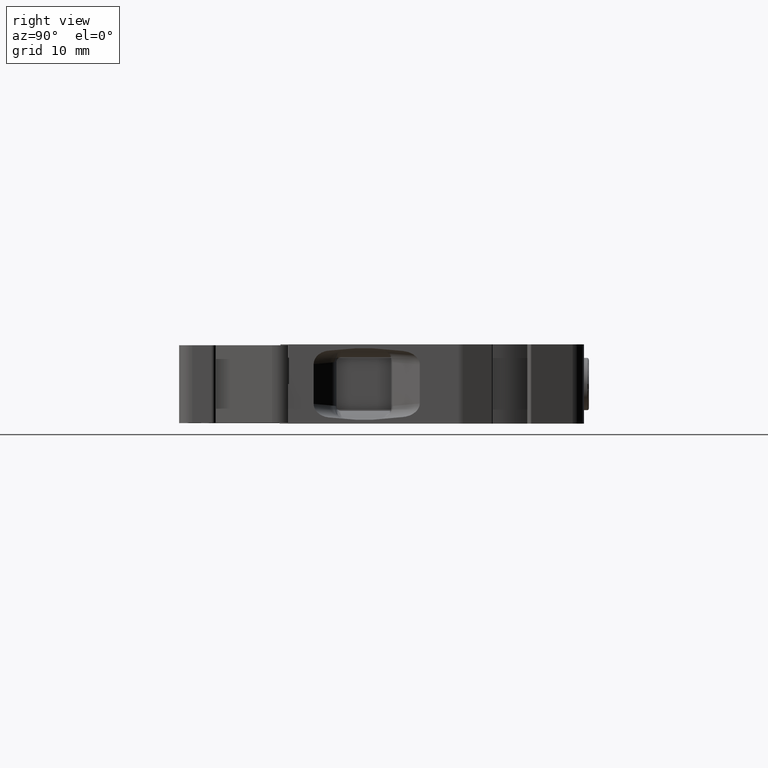
[diagram: clean part render]
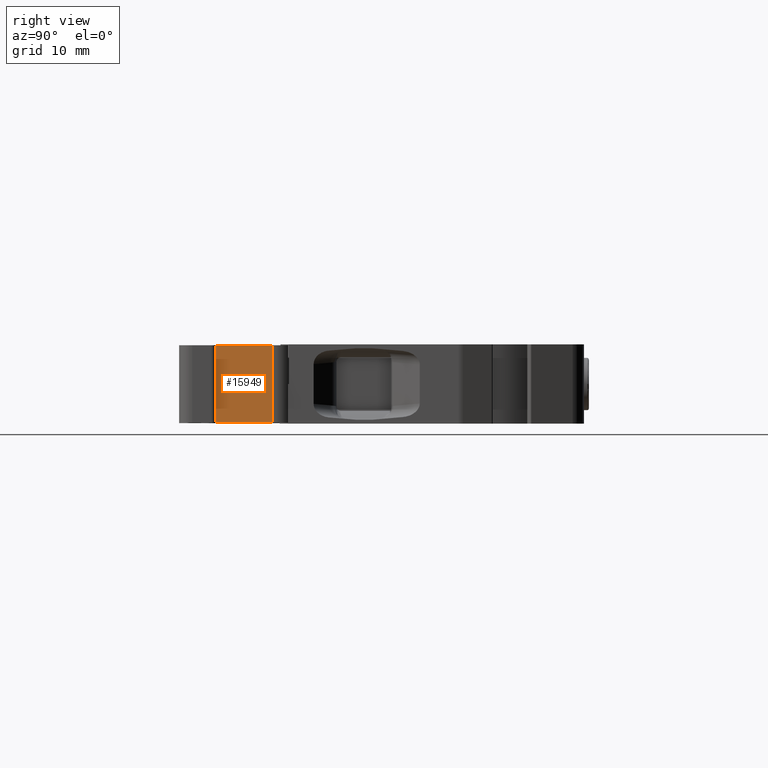
[diagram: same view with one face highlighted and labeled with its STEP entity id]
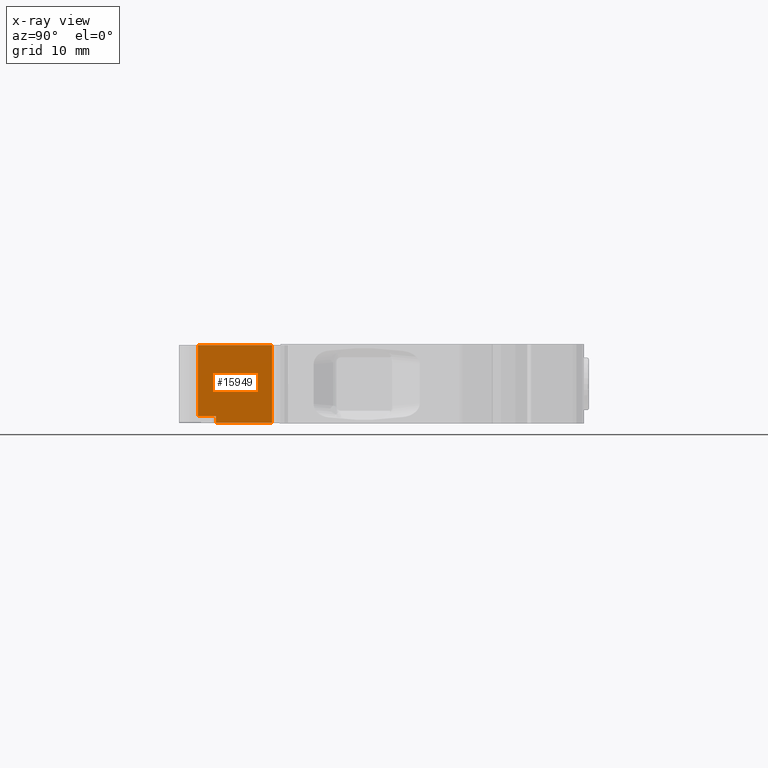
[diagram: x-ray of the same camera — body ghosted, the highlighted face saturated]
A machine part, right view. The second image highlights one B-rep face of the part: STEP entity #15949.
The next image is the same camera in x-ray: the body ghosted, the highlighted face saturated — about 0% of this face is hidden behind the body in this view.
In plain terms, the highlighted planar face has unit normal (0.9659, -0.2588, 0).
Its self-contained STEP definition (entity closure, byte-faithful):
#31 = CARTESIAN_POINT ( 'NONE',  ( 503.4182846379087000, 101.2396801636683700, 26.95000000000000300 ) ) ;
#66 = CARTESIAN_POINT ( 'NONE',  ( 505.1508689319251700, 107.7062752780199700, 26.95000000000000300 ) ) ;
#569 = LINE ( 'NONE', #570, #1236 ) ;
#570 = CARTESIAN_POINT ( 'NONE',  ( 488.2716139447940100, 44.70714258898591700, 27.69999999999998900 ) ) ;
#616 = DIRECTION ( 'NONE',  ( 0.2588002801198680000, 0.9659308541556573800, 0.0000000000000000000 ) ) ;
#972 = CARTESIAN_POINT ( 'NONE',  ( 505.1508689319251700, 107.7062752780199700, 35.85000000000000100 ) ) ;
#1236 = VECTOR ( 'NONE', #616, 1000.000000000000100 ) ;
#1370 = VECTOR ( 'NONE', #9002, 1000.000000000000100 ) ;
#1768 = AXIS2_PLACEMENT_3D ( 'NONE', #11171, #11137, #11140 ) ;
#2650 = EDGE_CURVE ( 'NONE', #6312, #6359, #13393, .T. ) ;
#2768 = EDGE_CURVE ( 'NONE', #4043, #6312, #13551, .T. ) ;
#2823 = EDGE_CURVE ( 'NONE', #6150, #6359, #13791, .T. ) ;
#3277 = EDGE_CURVE ( 'NONE', #4216, #4211, #14381, .T. ) ;
#3857 = EDGE_LOOP ( 'NONE', ( #6693, #6680, #6710, #6692, #6638, #6691 ) ) ;
#4043 = VERTEX_POINT ( 'NONE', #10681 ) ;
#4211 = VERTEX_POINT ( 'NONE', #10859 ) ;
#4216 = VERTEX_POINT ( 'NONE', #10852 ) ;
#6150 = VERTEX_POINT ( 'NONE', #972 ) ;
#6312 = VERTEX_POINT ( 'NONE', #31 ) ;
#6359 = VERTEX_POINT ( 'NONE', #66 ) ;
#6638 = ORIENTED_EDGE ( 'NONE', *, *, #2768, .T. ) ;
#6680 = ORIENTED_EDGE ( 'NONE', *, *, #15490, .T. ) ;
#6691 = ORIENTED_EDGE ( 'NONE', *, *, #2650, .T. ) ;
#6692 = ORIENTED_EDGE ( 'NONE', *, *, #15387, .T. ) ;
#6693 = ORIENTED_EDGE ( 'NONE', *, *, #2823, .F. ) ;
#6710 = ORIENTED_EDGE ( 'NONE', *, *, #3277, .T. ) ;
#8975 = LINE ( 'NONE', #8979, #1370 ) ;
#8979 = CARTESIAN_POINT ( 'NONE',  ( 488.2716139447940100, 44.70714258898591700, 35.85000000000000100 ) ) ;
#9002 = DIRECTION ( 'NONE',  ( -0.2588002801198680000, -0.9659308541556573800, 0.0000000000000000000 ) ) ;
#10681 = CARTESIAN_POINT ( 'NONE',  ( 503.4182846379087000, 101.2396801636684500, 27.69999999999999200 ) ) ;
#10852 = CARTESIAN_POINT ( 'NONE',  ( 502.8635140846586800, 99.16908737252813900, 35.85000000000000100 ) ) ;
#10859 = CARTESIAN_POINT ( 'NONE',  ( 502.8635140846585600, 99.16908737252819600, 27.69999999999999600 ) ) ;
#11137 = DIRECTION ( 'NONE',  ( 0.9659308541556573800, -0.2588002801198680000, 0.0000000000000000000 ) ) ;
#11140 = DIRECTION ( 'NONE',  ( 0.2588002801198680000, 0.9659308541556573800, 0.0000000000000000000 ) ) ;
#11153 = FACE_OUTER_BOUND ( 'NONE', #3857, .T. ) ;
#11171 = CARTESIAN_POINT ( 'NONE',  ( 488.2716139447940100, 44.70714258898591700, 35.79999999999999700 ) ) ;
#11207 = PLANE ( 'NONE',  #1768 ) ;
#11335 = VECTOR ( 'NONE', #14342, 1000.000000000000000 ) ;
#11494 = VECTOR ( 'NONE', #13465, 1000.000000000000100 ) ;
#11510 = VECTOR ( 'NONE', #13580, 1000.000000000000000 ) ;
#11567 = VECTOR ( 'NONE', #13734, 1000.000000000000000 ) ;
#13393 = LINE ( 'NONE', #13398, #11494 ) ;
#13398 = CARTESIAN_POINT ( 'NONE',  ( 488.2716139447939600, 44.70714258898565400, 26.95000000000000300 ) ) ;
#13465 = DIRECTION ( 'NONE',  ( 0.2588002801198680000, 0.9659308541556573800, 0.0000000000000000000 ) ) ;
#13551 = LINE ( 'NONE', #13569, #11510 ) ;
#13569 = CARTESIAN_POINT ( 'NONE',  ( 503.4182846379087000, 101.2396801636683700, 35.79999999999999700 ) ) ;
#13580 = DIRECTION ( 'NONE',  ( 0.0000000000000000000, -0.0000000000000000000, -1.000000000000000000 ) ) ;
#13734 = DIRECTION ( 'NONE',  ( 0.0000000000000000000, 0.0000000000000000000, -1.000000000000000000 ) ) ;
#13791 = LINE ( 'NONE', #13801, #11567 ) ;
#13801 = CARTESIAN_POINT ( 'NONE',  ( 505.1508689319251700, 107.7062752780199700, 35.79999999999999700 ) ) ;
#14342 = DIRECTION ( 'NONE',  ( 0.0000000000000000000, -0.0000000000000000000, -1.000000000000000000 ) ) ;
#14365 = CARTESIAN_POINT ( 'NONE',  ( 502.8635140846586800, 99.16908737252813900, 35.79999999999999700 ) ) ;
#14381 = LINE ( 'NONE', #14365, #11335 ) ;
#15387 = EDGE_CURVE ( 'NONE', #4211, #4043, #569, .T. ) ;
#15490 = EDGE_CURVE ( 'NONE', #6150, #4216, #8975, .T. ) ;
#15949 = ADVANCED_FACE ( 'NONE', ( #11153 ), #11207, .T. ) ;